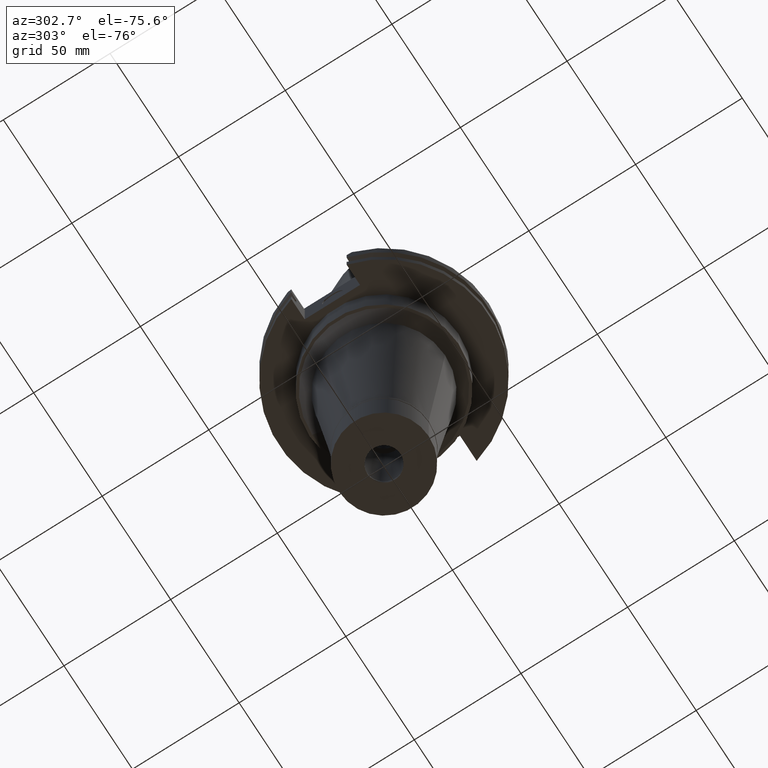
[diagram: clean part render]
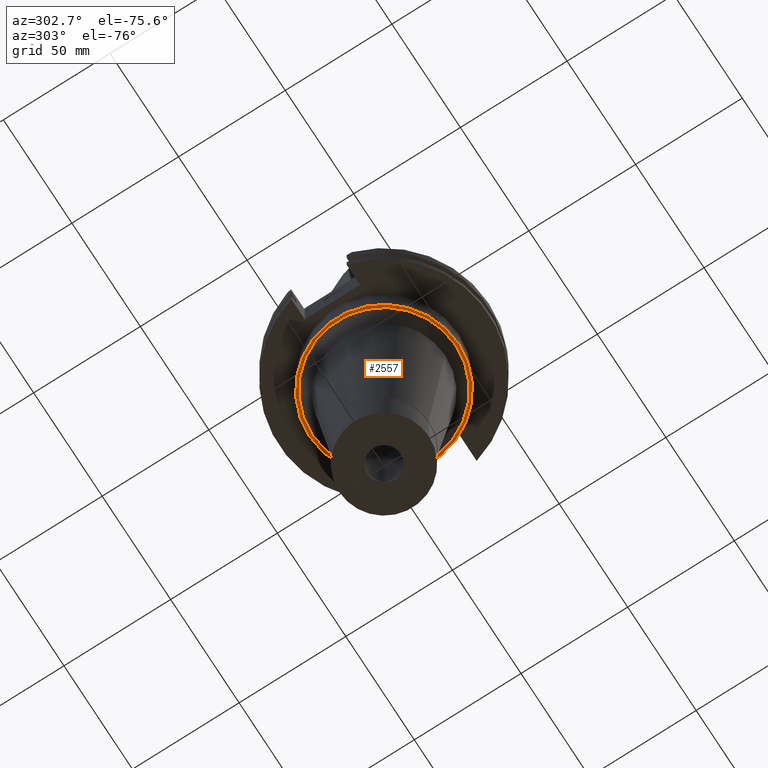
[diagram: same view with one face highlighted and labeled with its STEP entity id]
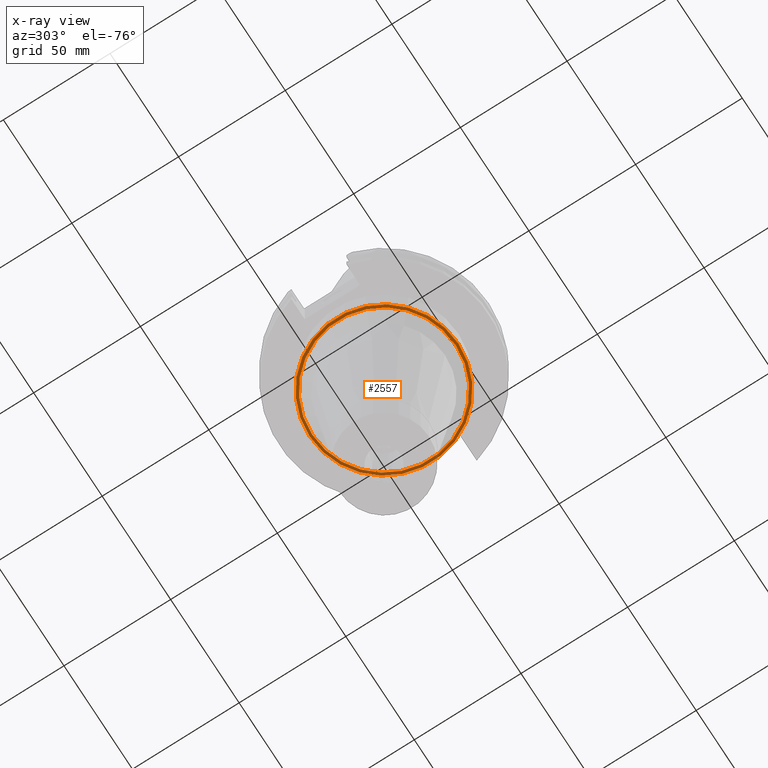
[diagram: x-ray of the same camera — body ghosted, the highlighted face saturated]
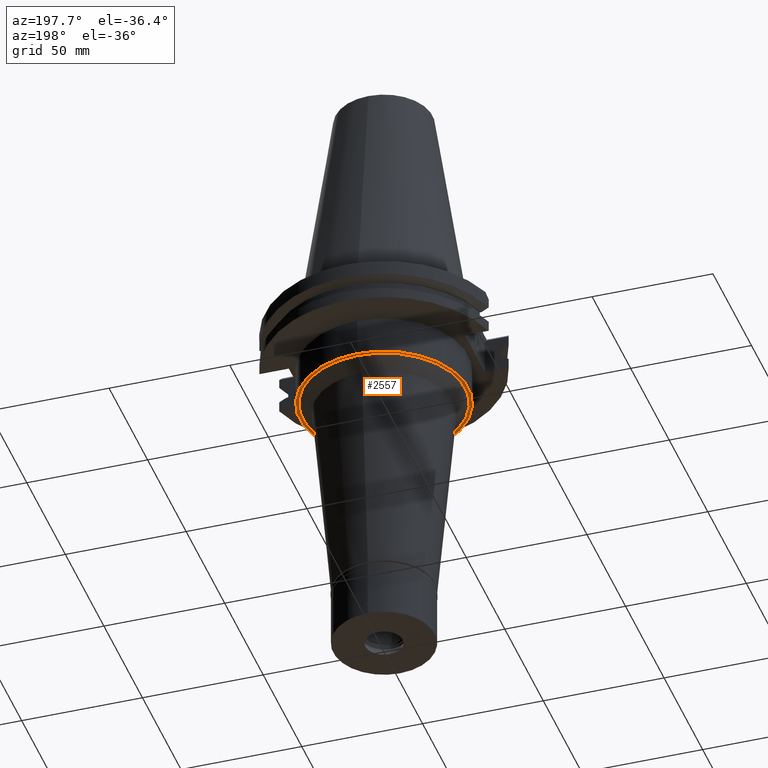
[diagram: same view with one face highlighted and labeled with its STEP entity id]
A machine part, auxiliary view. The second image highlights one B-rep face of the part: STEP entity #2557.
The next image is the same camera in x-ray: the body ghosted, the highlighted face saturated — about 21% of this face is hidden behind the body in this view.
A second angle (auxiliary view) of the same face is appended — the face is thin or edge-on in the first view.
In plain terms, the highlighted planar face has unit normal (0, 0, -1).
Its self-contained STEP definition (entity closure, byte-faithful):
#40 = CARTESIAN_POINT ( 'NONE',  ( 0.0000000000000000000, 34.92499999999999716, -35.00000000000000000 ) ) ;
#132 = ORIENTED_EDGE ( 'NONE', *, *, #2054, .F. ) ;
#278 = EDGE_CURVE ( 'NONE', #1217, #929, #910, .T. ) ;
#350 = VERTEX_POINT ( 'NONE', #2870 ) ;
#464 = DIRECTION ( 'NONE',  ( 0.0000000000000000000, -1.000000000000000000, 0.0000000000000000000 ) ) ;
#481 = DIRECTION ( 'NONE',  ( 0.0000000000000000000, 1.000000000000000000, 0.0000000000000000000 ) ) ;
#515 = AXIS2_PLACEMENT_3D ( 'NONE', #3304, #2333, #464 ) ;
#611 = CARTESIAN_POINT ( 'NONE',  ( 0.0000000000000000000, 0.0000000000000000000, -35.00000000000000000 ) ) ;
#765 = FACE_BOUND ( 'NONE', #1344, .T. ) ;
#910 = CIRCLE ( 'NONE', #1242, 34.92499999999999716 ) ;
#929 = VERTEX_POINT ( 'NONE', #40 ) ;
#934 = AXIS2_PLACEMENT_3D ( 'NONE', #2769, #2832, #960 ) ;
#960 = DIRECTION ( 'NONE',  ( 0.0000000000000000000, -1.000000000000000000, 0.0000000000000000000 ) ) ;
#1001 = DIRECTION ( 'NONE',  ( 0.0000000000000000000, 0.0000000000000000000, 1.000000000000000000 ) ) ;
#1066 = DIRECTION ( 'NONE',  ( 0.0000000000000000000, 0.0000000000000000000, -1.000000000000000000 ) ) ;
#1217 = VERTEX_POINT ( 'NONE', #2710 ) ;
#1242 = AXIS2_PLACEMENT_3D ( 'NONE', #1470, #1987, #2271 ) ;
#1297 = CARTESIAN_POINT ( 'NONE',  ( 0.0000000000000000000, 2.619825665075999614E-14, -35.00000000000000000 ) ) ;
#1344 = EDGE_LOOP ( 'NONE', ( #2414, #132 ) ) ;
#1421 = CIRCLE ( 'NONE', #515, 33.63776032580999953 ) ;
#1470 = CARTESIAN_POINT ( 'NONE',  ( 0.0000000000000000000, 2.619825665075999614E-14, -35.00000000000000000 ) ) ;
#1605 = EDGE_CURVE ( 'NONE', #2519, #350, #1616, .T. ) ;
#1616 = CIRCLE ( 'NONE', #2146, 33.63776032580999953 ) ;
#1796 = CARTESIAN_POINT ( 'NONE',  ( 0.0000000000000000000, 33.63776032580999953, -35.00000000000000000 ) ) ;
#1983 = CIRCLE ( 'NONE', #2568, 34.92499999999999716 ) ;
#1987 = DIRECTION ( 'NONE',  ( 0.0000000000000000000, 0.0000000000000000000, 1.000000000000000000 ) ) ;
#2026 = EDGE_CURVE ( 'NONE', #929, #1217, #1983, .T. ) ;
#2054 = EDGE_CURVE ( 'NONE', #350, #2519, #1421, .T. ) ;
#2103 = DIRECTION ( 'NONE',  ( 0.0000000000000000000, 1.000000000000000000, 0.0000000000000000000 ) ) ;
#2146 = AXIS2_PLACEMENT_3D ( 'NONE', #611, #1066, #2103 ) ;
#2271 = DIRECTION ( 'NONE',  ( 0.0000000000000000000, -1.000000000000000000, 0.0000000000000000000 ) ) ;
#2302 = ORIENTED_EDGE ( 'NONE', *, *, #2026, .F. ) ;
#2333 = DIRECTION ( 'NONE',  ( 0.0000000000000000000, 0.0000000000000000000, -1.000000000000000000 ) ) ;
#2414 = ORIENTED_EDGE ( 'NONE', *, *, #1605, .F. ) ;
#2519 = VERTEX_POINT ( 'NONE', #1796 ) ;
#2522 = PLANE ( 'NONE',  #934 ) ;
#2557 = ADVANCED_FACE ( 'NONE', ( #2793, #765 ), #2522, .T. ) ;
#2568 = AXIS2_PLACEMENT_3D ( 'NONE', #1297, #1001, #481 ) ;
#2710 = CARTESIAN_POINT ( 'NONE',  ( 0.0000000000000000000, -34.92499999999999716, -35.00000000000000000 ) ) ;
#2769 = CARTESIAN_POINT ( 'NONE',  ( 0.0000000000000000000, 0.0000000000000000000, -35.00000000000000000 ) ) ;
#2793 = FACE_OUTER_BOUND ( 'NONE', #3027, .T. ) ;
#2832 = DIRECTION ( 'NONE',  ( 0.0000000000000000000, 0.0000000000000000000, -1.000000000000000000 ) ) ;
#2870 = CARTESIAN_POINT ( 'NONE',  ( 0.0000000000000000000, -33.63776032580999953, -35.00000000000000000 ) ) ;
#3027 = EDGE_LOOP ( 'NONE', ( #2302, #3103 ) ) ;
#3103 = ORIENTED_EDGE ( 'NONE', *, *, #278, .F. ) ;
#3304 = CARTESIAN_POINT ( 'NONE',  ( 0.0000000000000000000, 0.0000000000000000000, -35.00000000000000000 ) ) ;